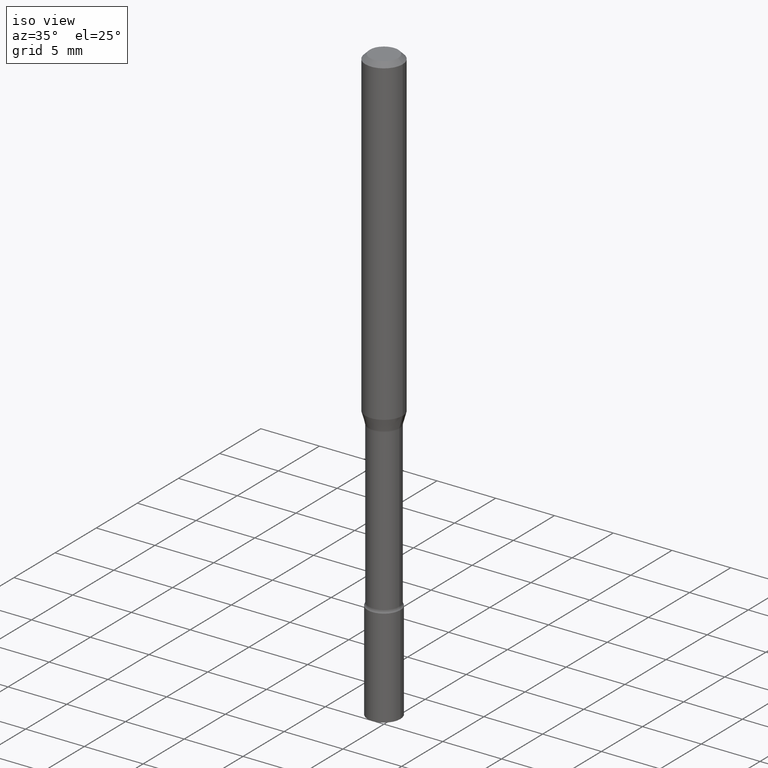
[diagram: clean part render]
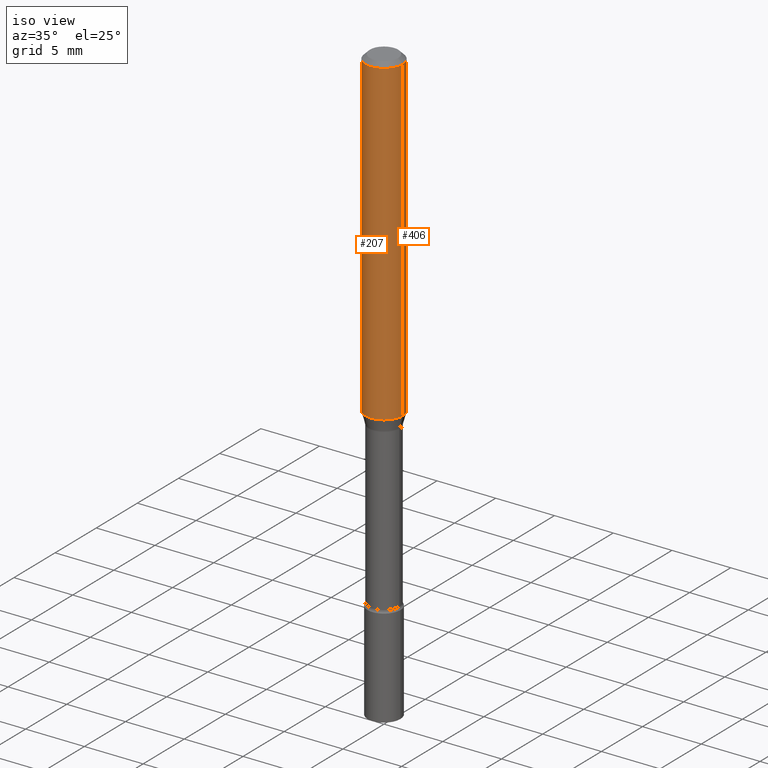
[diagram: same view with one multi-face feature highlighted, each face labeled with its STEP entity id]
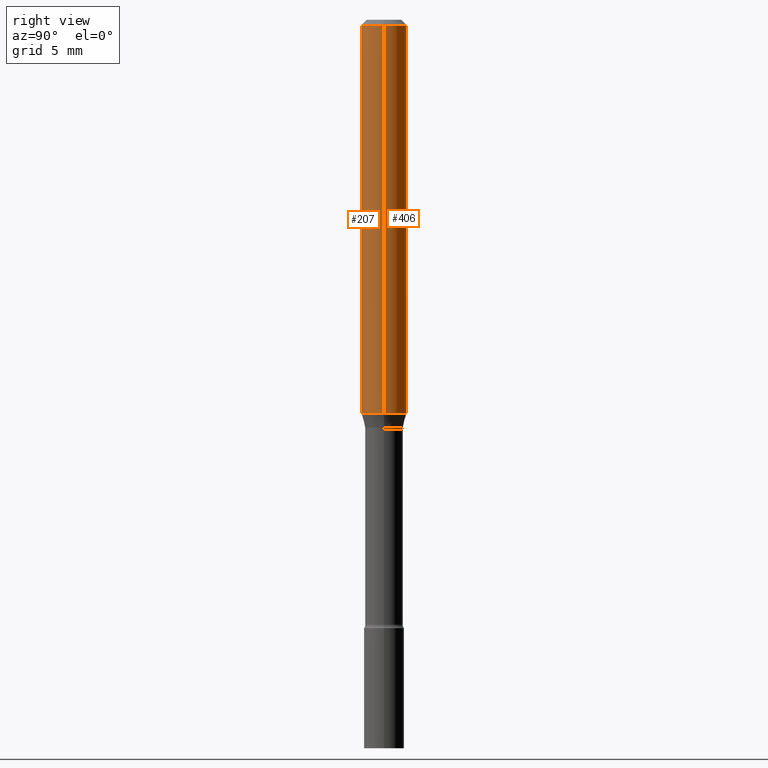
[diagram: same view with one multi-face feature highlighted, each face labeled with its STEP entity id]
A machine part, iso view. The highlighted faces form ONE feature: a constant-radius fillet chain: 2 tangent blend faces with common blend radius 1.5875 mm. The faces share edges in the B-rep.
A second angle (right view) of the same feature is appended — it is thin or edge-on in the first view.
Their STEP definitions:
[1] entity #406 (Cylinder):
#28 = DIRECTION ( 'NONE',  ( 1.000000000000000000, -6.982962677686270655E-15, 0.000000000000000000 ) ) ;
#34 = CARTESIAN_POINT ( 'NONE',  ( 0.06250000000000000000, -4.206166100757109434E-15, -1.079693851278256123 ) ) ;
#40 = CARTESIAN_POINT ( 'NONE',  ( -0.06250000000000000000, -1.466962366892119806E-15, -0.01500000000000003067 ) ) ;
#54 = LINE ( 'NONE', #496, #90 ) ;
#59 = EDGE_CURVE ( 'NONE', #286, #346, #333, .T. ) ;
#90 = VECTOR ( 'NONE', #454, 39.37007874015748143 ) ;
#101 = AXIS2_PLACEMENT_3D ( 'NONE', #339, #215, #102 ) ;
#102 = DIRECTION ( 'NONE',  ( 1.000000000000000000, -6.982962677686266711E-15, 0.000000000000000000 ) ) ;
#108 = VECTOR ( 'NONE', #503, 39.37007874015748143 ) ;
#132 = AXIS2_PLACEMENT_3D ( 'NONE', #257, #340, #426 ) ;
#141 = DIRECTION ( 'NONE',  ( -2.445468806185136597E-29, 3.491481338843145583E-15, 1.000000000000000000 ) ) ;
#170 = EDGE_LOOP ( 'NONE', ( #327, #326, #185, #405 ) ) ;
#179 = EDGE_CURVE ( 'NONE', #346, #449, #307, .T. ) ;
#185 = ORIENTED_EDGE ( 'NONE', *, *, #179, .F. ) ;
#196 = EDGE_CURVE ( 'NONE', #286, #293, #502, .T. ) ;
#215 = DIRECTION ( 'NONE',  ( -2.445468806185136597E-29, 3.491481338843145583E-15, 1.000000000000000000 ) ) ;
#257 = CARTESIAN_POINT ( 'NONE',  ( 0.000000000000000000, 0.000000000000000000, 0.000000000000000000 ) ) ;
#265 = CARTESIAN_POINT ( 'NONE',  ( 0.06250000000000000000, -4.364351673553916694E-16, 3.047610484872459871E-30 ) ) ;
#286 = VERTEX_POINT ( 'NONE', #34 ) ;
#293 = VERTEX_POINT ( 'NONE', #483 ) ;
#299 = CARTESIAN_POINT ( 'NONE',  ( 2.640357633530869874E-29, -3.769730933401717765E-15, -1.079693851278256123 ) ) ;
#307 = CIRCLE ( 'NONE', #101, 0.06250000000000000000 ) ;
#326 = ORIENTED_EDGE ( 'NONE', *, *, #394, .T. ) ;
#327 = ORIENTED_EDGE ( 'NONE', *, *, #196, .T. ) ;
#333 = LINE ( 'NONE', #265, #108 ) ;
#339 = CARTESIAN_POINT ( 'NONE',  ( 3.668203209277712094E-31, -5.237222008264728876E-17, -0.01500000000000003067 ) ) ;
#340 = DIRECTION ( 'NONE',  ( -2.445468806185136597E-29, 3.491481338843145583E-15, 1.000000000000000000 ) ) ;
#346 = VERTEX_POINT ( 'NONE', #389 ) ;
#389 = CARTESIAN_POINT ( 'NONE',  ( 0.06250000000000000000, -4.888073874380389458E-16, -0.01500000000000003067 ) ) ;
#394 = EDGE_CURVE ( 'NONE', #293, #449, #54, .T. ) ;
#405 = ORIENTED_EDGE ( 'NONE', *, *, #59, .F. ) ;
#406 = ADVANCED_FACE ( 'NONE', ( #462 ), #460, .T. ) ;
#426 = DIRECTION ( 'NONE',  ( 1.000000000000000000, -6.982962677686266711E-15, 4.876176775795935793E-29 ) ) ;
#449 = VERTEX_POINT ( 'NONE', #40 ) ;
#454 = DIRECTION ( 'NONE',  ( -2.445468806185136877E-29, 3.491481338843145188E-15, 1.000000000000000000 ) ) ;
#460 = CYLINDRICAL_SURFACE ( 'NONE', #132, 0.06250000000000000000 ) ;
#462 = FACE_OUTER_BOUND ( 'NONE', #170, .T. ) ;
#483 = CARTESIAN_POINT ( 'NONE',  ( -0.06250000000000000000, -3.325641723551655543E-15, -1.079693851278256123 ) ) ;
#496 = CARTESIAN_POINT ( 'NONE',  ( -0.06250000000000000000, 4.440892098500626162E-16, -3.074334431409316114E-30 ) ) ;
#502 = CIRCLE ( 'NONE', #518, 0.06250000000000000000 ) ;
#503 = DIRECTION ( 'NONE',  ( -2.445468806185136877E-29, 3.491481338843145188E-15, 1.000000000000000000 ) ) ;
#518 = AXIS2_PLACEMENT_3D ( 'NONE', #299, #141, #28 ) ;
[2] entity #207 (Cylinder):
#3 = CARTESIAN_POINT ( 'NONE',  ( 3.668203209277712094E-31, -5.237222008264728876E-17, -0.01500000000000003067 ) ) ;
#16 = EDGE_CURVE ( 'NONE', #293, #286, #377, .T. ) ;
#25 = CIRCLE ( 'NONE', #308, 0.06250000000000000000 ) ;
#34 = CARTESIAN_POINT ( 'NONE',  ( 0.06250000000000000000, -4.206166100757109434E-15, -1.079693851278256123 ) ) ;
#36 = DIRECTION ( 'NONE',  ( -2.445468806185136597E-29, 3.491481338843145583E-15, 1.000000000000000000 ) ) ;
#40 = CARTESIAN_POINT ( 'NONE',  ( -0.06250000000000000000, -1.466962366892119806E-15, -0.01500000000000003067 ) ) ;
#54 = LINE ( 'NONE', #496, #90 ) ;
#59 = EDGE_CURVE ( 'NONE', #286, #346, #333, .T. ) ;
#90 = VECTOR ( 'NONE', #454, 39.37007874015748143 ) ;
#98 = ORIENTED_EDGE ( 'NONE', *, *, #59, .T. ) ;
#108 = VECTOR ( 'NONE', #503, 39.37007874015748143 ) ;
#143 = DIRECTION ( 'NONE',  ( 1.000000000000000000, -6.982962677686266711E-15, 4.876176775795935793E-29 ) ) ;
#160 = AXIS2_PLACEMENT_3D ( 'NONE', #216, #261, #473 ) ;
#186 = EDGE_LOOP ( 'NONE', ( #452, #491, #98, #408 ) ) ;
#207 = ADVANCED_FACE ( 'NONE', ( #509 ), #258, .T. ) ;
#216 = CARTESIAN_POINT ( 'NONE',  ( 2.640357633530869874E-29, -3.769730933401717765E-15, -1.079693851278256123 ) ) ;
#258 = CYLINDRICAL_SURFACE ( 'NONE', #472, 0.06250000000000000000 ) ;
#261 = DIRECTION ( 'NONE',  ( -2.445468806185136597E-29, 3.491481338843145583E-15, 1.000000000000000000 ) ) ;
#265 = CARTESIAN_POINT ( 'NONE',  ( 0.06250000000000000000, -4.364351673553916694E-16, 3.047610484872459871E-30 ) ) ;
#286 = VERTEX_POINT ( 'NONE', #34 ) ;
#293 = VERTEX_POINT ( 'NONE', #483 ) ;
#308 = AXIS2_PLACEMENT_3D ( 'NONE', #3, #36, #359 ) ;
#333 = LINE ( 'NONE', #265, #108 ) ;
#343 = CARTESIAN_POINT ( 'NONE',  ( 0.000000000000000000, 0.000000000000000000, 0.000000000000000000 ) ) ;
#346 = VERTEX_POINT ( 'NONE', #389 ) ;
#359 = DIRECTION ( 'NONE',  ( 1.000000000000000000, -6.982962677686266711E-15, 0.000000000000000000 ) ) ;
#377 = CIRCLE ( 'NONE', #160, 0.06250000000000000000 ) ;
#389 = CARTESIAN_POINT ( 'NONE',  ( 0.06250000000000000000, -4.888073874380389458E-16, -0.01500000000000003067 ) ) ;
#394 = EDGE_CURVE ( 'NONE', #293, #449, #54, .T. ) ;
#408 = ORIENTED_EDGE ( 'NONE', *, *, #470, .F. ) ;
#449 = VERTEX_POINT ( 'NONE', #40 ) ;
#452 = ORIENTED_EDGE ( 'NONE', *, *, #394, .F. ) ;
#454 = DIRECTION ( 'NONE',  ( -2.445468806185136877E-29, 3.491481338843145188E-15, 1.000000000000000000 ) ) ;
#465 = DIRECTION ( 'NONE',  ( -2.445468806185136597E-29, 3.491481338843145583E-15, 1.000000000000000000 ) ) ;
#470 = EDGE_CURVE ( 'NONE', #449, #346, #25, .T. ) ;
#472 = AXIS2_PLACEMENT_3D ( 'NONE', #343, #465, #143 ) ;
#473 = DIRECTION ( 'NONE',  ( 1.000000000000000000, -6.982962677686270655E-15, 0.000000000000000000 ) ) ;
#483 = CARTESIAN_POINT ( 'NONE',  ( -0.06250000000000000000, -3.325641723551655543E-15, -1.079693851278256123 ) ) ;
#491 = ORIENTED_EDGE ( 'NONE', *, *, #16, .T. ) ;
#496 = CARTESIAN_POINT ( 'NONE',  ( -0.06250000000000000000, 4.440892098500626162E-16, -3.074334431409316114E-30 ) ) ;
#503 = DIRECTION ( 'NONE',  ( -2.445468806185136877E-29, 3.491481338843145188E-15, 1.000000000000000000 ) ) ;
#509 = FACE_OUTER_BOUND ( 'NONE', #186, .T. ) ;